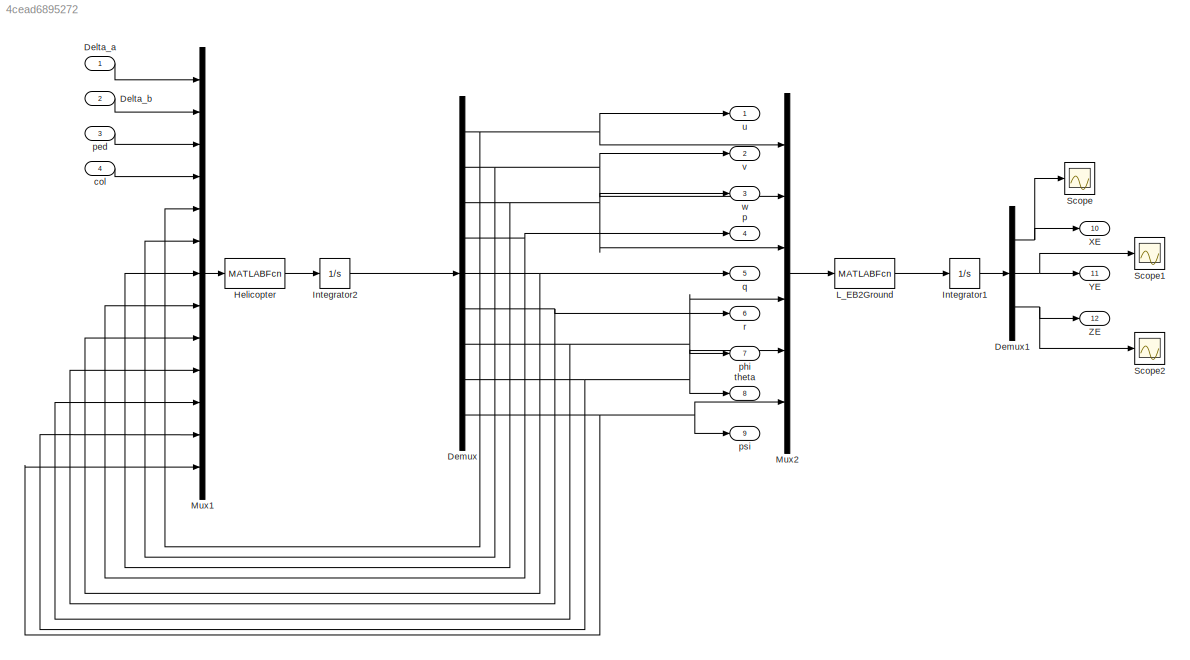
MODEL slx_4cead6895272
KIND model
CONFIG AbsTol = auto
CONFIG EnableMultiTasking = off
CONFIG FixedStep = auto
CONFIG MaxStep = auto
CONFIG MinStep = auto
CONFIG RelTol = 1e-3
CONFIG SampleTimeConstraint = Unconstrained
CONFIG SolverName = VariableStepAuto
CONFIG StartTime = 0.0
CONFIG StopTime = 10.0
BLOCK [Inport] Delta_a
BLOCK [Inport] Delta_b
  Port = 2
BLOCK [Demux] Demux
  Outputs = 9
BLOCK [Demux] Demux1
  Outputs = 3
BLOCK [MATLABFcn] Helicopter
  MATLABFcn = F500Model
BLOCK [Integrator] Integrator1
  InitialCondition = [0 0 0]
BLOCK [Integrator] Integrator2
  InitialCondition = [0 0 0 0 0 0 0 0 0]
BLOCK [MATLABFcn] L_EB2Ground
  MATLABFcn = L_EB2Ground
BLOCK [Mux] Mux1
  DisplayOption = bar
  Inputs = 13
BLOCK [Mux] Mux2
  DisplayOption = bar
  Inputs = 6
BLOCK [Scope] Scope
  Floating = off
  NumInputPorts = 1
  ScopeSpecificationString = Simulink.scopes.TimeScopeBlockCfg('CurrentConfiguration', extmgr.ConfigurationSet(extmgr.Configuration('Core','General UI',true),extmgr.Configuration('Core','Source UI',true),extmgr.Configuration('Sources','WiredSimulink',true,'DataLoggingVariableName','ScopeData1','DataLoggingSaveFormat','StructureWithTime','DataLoggingLimitDataPoints',true,'DataLoggingDecimation','1','DataLoggingDecimateData',tr...<+1685ch>
BLOCK [Scope] Scope1
  Floating = off
  NumInputPorts = 1
  ScopeSpecificationString = Simulink.scopes.TimeScopeBlockCfg('CurrentConfiguration', extmgr.ConfigurationSet(extmgr.Configuration('Core','General UI',true),extmgr.Configuration('Core','Source UI',true),extmgr.Configuration('Sources','WiredSimulink',true,'DataLoggingVariableName','ScopeData2','DataLoggingSaveFormat','StructureWithTime','DataLoggingDecimation','1','DataLoggingDecimateData',true),extmgr.Configuration('Visuals'...<+1650ch>
BLOCK [Scope] Scope2
  Floating = off
  NumInputPorts = 1
  ScopeSpecificationString = Simulink.scopes.TimeScopeBlockCfg('CurrentConfiguration', extmgr.ConfigurationSet(extmgr.Configuration('Core','General UI',true),extmgr.Configuration('Core','Source UI',true),extmgr.Configuration('Sources','WiredSimulink',true,'DataLoggingSaveFormat','StructureWithTime','DataLoggingDecimation','1','DataLoggingDecimateData',true),extmgr.Configuration('Visuals','Time Domain',true,'SerializedDisplays...<+1657ch>
BLOCK [Outport] XE
  Port = 10
BLOCK [Outport] YE
  Port = 11
BLOCK [Outport] ZE
  Port = 12
BLOCK [Inport] col
  Port = 4
BLOCK [Outport] p
  Port = 4
BLOCK [Inport] ped
  Port = 3
BLOCK [Outport] phi
  Port = 7
BLOCK [Outport] psi
  Port = 9
BLOCK [Outport] q
  Port = 5
BLOCK [Outport] r
  Port = 6
BLOCK [Outport] theta
  Port = 8
BLOCK [Outport] u
BLOCK [Outport] v
  Port = 2
BLOCK [Outport] w
  Port = 3
LINE Delta_a:1 -> Mux1:1
LINE Delta_b:1 -> Mux1:2
NET Demux1:1 -> Scope:1, XE:1
NET Demux1:2 -> Scope1:1, YE:1
NET Demux1:3 -> Scope2:1, ZE:1
NET Demux:1 -> Mux1:5, Mux2:1, u:1
NET Demux:2 -> Mux1:6, Mux2:2, v:1
NET Demux:3 -> Mux1:7, Mux2:3, w:1
NET Demux:4 -> Mux1:8, p:1
NET Demux:5 -> Mux1:9, q:1
NET Demux:6 -> Mux1:10, r:1
NET Demux:7 -> Mux1:11, Mux2:4, phi:1
NET Demux:8 -> Mux1:12, Mux2:5, theta:1
NET Demux:9 -> Mux1:13, Mux2:6, psi:1
LINE Helicopter:1 -> Integrator2:1
LINE Integrator1:1 -> Demux1:1
LINE Integrator2:1 -> Demux:1
LINE L_EB2Ground:1 -> Integrator1:1
LINE Mux1:1 -> Helicopter:1
LINE Mux2:1 -> L_EB2Ground:1
LINE col:1 -> Mux1:4
LINE ped:1 -> Mux1:3
note: NET lines group one-source signal fan-out (src -> all destinations, sorted); 1:1 wires keep LINE
